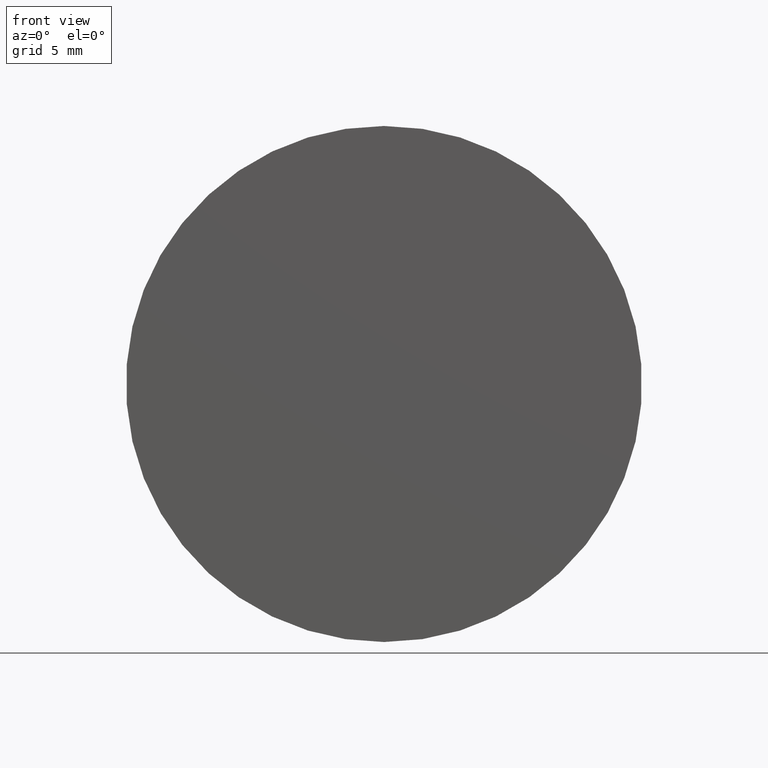
[diagram: clean part render]
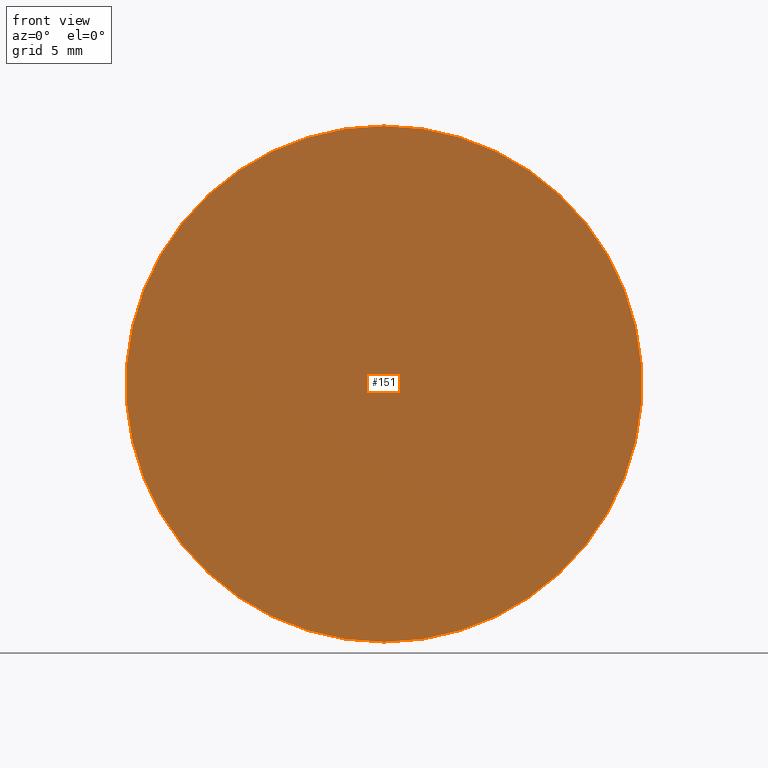
[diagram: same view with one face highlighted and labeled with its STEP entity id]
A machine part, front view. The second image highlights one B-rep face of the part: STEP entity #151.
In plain terms, the highlighted planar face has unit normal (0, -1, 0).
Its self-contained STEP definition (entity closure, byte-faithful):
#1 = EDGE_LOOP ( 'NONE', ( #155, #31 ) ) ;
#3 = DIRECTION ( 'NONE',  ( -0.000000000000000000, 1.000000000000000000, -0.000000000000000000 ) ) ;
#9 = EDGE_CURVE ( 'NONE', #148, #124, #190, .T. ) ;
#15 = AXIS2_PLACEMENT_3D ( 'NONE', #59, #3, #99 ) ;
#31 = ORIENTED_EDGE ( 'NONE', *, *, #9, .F. ) ;
#39 = AXIS2_PLACEMENT_3D ( 'NONE', #71, #86, #128 ) ;
#55 = FACE_OUTER_BOUND ( 'NONE', #1, .T. ) ;
#57 = CIRCLE ( 'NONE', #39, 15.00000000000000000 ) ;
#59 = CARTESIAN_POINT ( 'NONE',  ( 0.000000000000000000, -1.734723475976807094E-15, 0.000000000000000000 ) ) ;
#70 = CARTESIAN_POINT ( 'NONE',  ( 0.000000000000000000, -1.734723475976807094E-15, 15.00000000000000000 ) ) ;
#71 = CARTESIAN_POINT ( 'NONE',  ( 0.000000000000000000, -1.734723475976807094E-15, 0.000000000000000000 ) ) ;
#73 = EDGE_CURVE ( 'NONE', #124, #148, #57, .T. ) ;
#86 = DIRECTION ( 'NONE',  ( -0.000000000000000000, 1.000000000000000000, -0.000000000000000000 ) ) ;
#99 = DIRECTION ( 'NONE',  ( 0.000000000000000000, 0.000000000000000000, 1.000000000000000000 ) ) ;
#101 = CARTESIAN_POINT ( 'NONE',  ( 0.000000000000000000, -9.184850993605147944E-16, 0.000000000000000000 ) ) ;
#111 = PLANE ( 'NONE',  #113 ) ;
#113 = AXIS2_PLACEMENT_3D ( 'NONE', #101, #158, #191 ) ;
#124 = VERTEX_POINT ( 'NONE', #70 ) ;
#128 = DIRECTION ( 'NONE',  ( 0.000000000000000000, 0.000000000000000000, 1.000000000000000000 ) ) ;
#129 = CARTESIAN_POINT ( 'NONE',  ( 1.836970198721029589E-15, -1.734723475976807094E-15, -15.00000000000000000 ) ) ;
#148 = VERTEX_POINT ( 'NONE', #129 ) ;
#151 = ADVANCED_FACE ( 'NONE', ( #55 ), #111, .T. ) ;
#155 = ORIENTED_EDGE ( 'NONE', *, *, #73, .F. ) ;
#158 = DIRECTION ( 'NONE',  ( 0.000000000000000000, -1.000000000000000000, 0.000000000000000000 ) ) ;
#190 = CIRCLE ( 'NONE', #15, 15.00000000000000000 ) ;
#191 = DIRECTION ( 'NONE',  ( 0.000000000000000000, -0.000000000000000000, -1.000000000000000000 ) ) ;